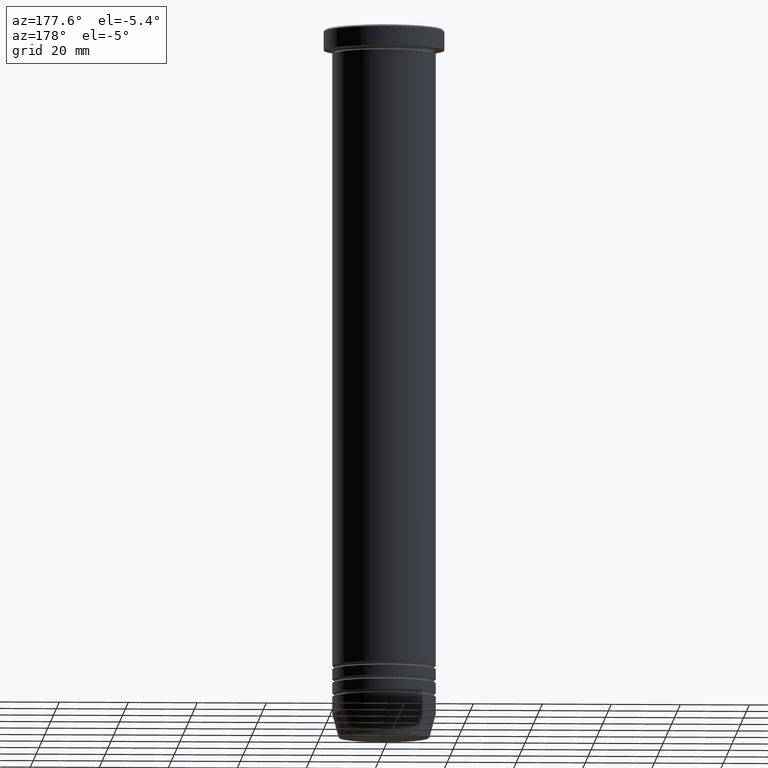
[diagram: clean part render]
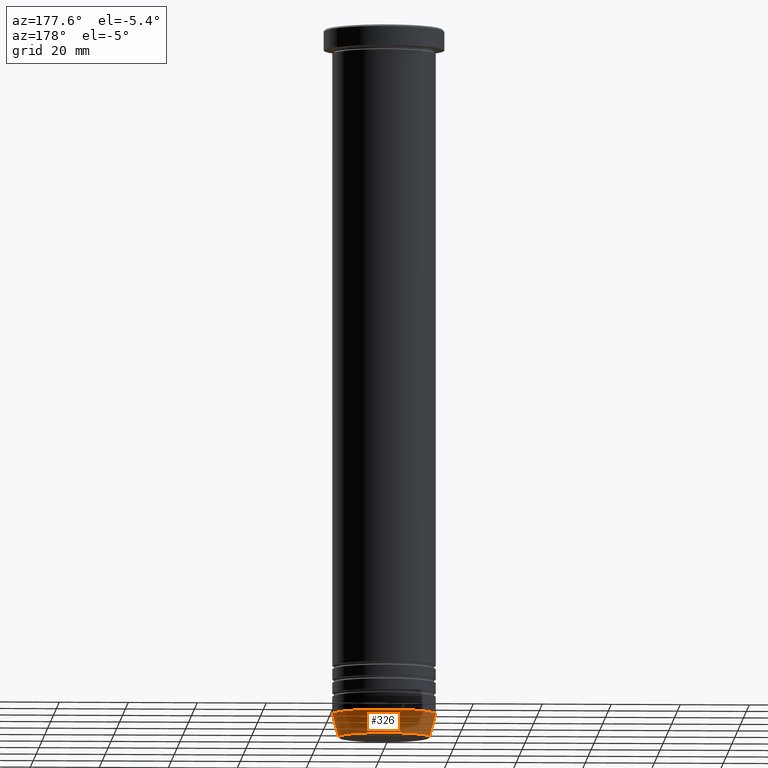
[diagram: same view with one face highlighted and labeled with its STEP entity id]
A machine part, auxiliary view. The second image highlights one B-rep face of the part: STEP entity #326.
In plain terms, the highlighted conical surface has half-angle 15 deg.
Its self-contained STEP definition (entity closure, byte-faithful):
#23 = DIRECTION ( 'NONE',  ( -0.2588190451025202399, 3.169619151431758162E-17, 0.9659258262890684232 ) ) ;
#31 = EDGE_CURVE ( 'NONE', #433, #1126, #473, .T. ) ;
#50 = CARTESIAN_POINT ( 'NONE',  ( 0.000000000000000000, 0.000000000000000000, -205.6294095225512706 ) ) ;
#95 = DIRECTION ( 'NONE',  ( 1.000000000000000000, 0.000000000000000000, 0.000000000000000000 ) ) ;
#118 = LINE ( 'NONE', #776, #593 ) ;
#138 = LINE ( 'NONE', #897, #764 ) ;
#148 = AXIS2_PLACEMENT_3D ( 'NONE', #50, #970, #798 ) ;
#154 = CARTESIAN_POINT ( 'NONE',  ( 13.22365507213718772, 0.000000000000000000, -205.6294095225512706 ) ) ;
#190 = CARTESIAN_POINT ( 'NONE',  ( 14.99999999999999822, 0.000000000000000000, -199.0000000000000000 ) ) ;
#215 = CARTESIAN_POINT ( 'NONE',  ( 0.000000000000000000, 0.000000000000000000, -206.0000000000000284 ) ) ;
#220 = DIRECTION ( 'NONE',  ( -0.000000000000000000, -0.000000000000000000, 1.000000000000000000 ) ) ;
#250 = ORIENTED_EDGE ( 'NONE', *, *, #535, .F. ) ;
#296 = AXIS2_PLACEMENT_3D ( 'NONE', #707, #543, #95 ) ;
#326 = ADVANCED_FACE ( 'NONE', ( #726 ), #606, .T. ) ;
#327 = EDGE_CURVE ( 'NONE', #1126, #405, #138, .T. ) ;
#378 = CARTESIAN_POINT ( 'NONE',  ( -14.99999999999999822, 1.836970198721029589E-15, -199.0000000000000000 ) ) ;
#405 = VERTEX_POINT ( 'NONE', #378 ) ;
#433 = VERTEX_POINT ( 'NONE', #154 ) ;
#473 = CIRCLE ( 'NONE', #148, 13.22365507213718772 ) ;
#476 = CARTESIAN_POINT ( 'NONE',  ( -13.22365507213718772, 1.728200442216587992E-15, -205.6294095225512706 ) ) ;
#509 = VERTEX_POINT ( 'NONE', #190 ) ;
#535 = EDGE_CURVE ( 'NONE', #433, #509, #118, .T. ) ;
#543 = DIRECTION ( 'NONE',  ( -0.000000000000000000, -0.000000000000000000, 1.000000000000000000 ) ) ;
#565 = EDGE_CURVE ( 'NONE', #509, #405, #750, .T. ) ;
#593 = VECTOR ( 'NONE', #1056, 999.9999999999998863 ) ;
#606 = CONICAL_SURFACE ( 'NONE', #910, 13.12435565298214080, 0.2617993877991488527 ) ;
#707 = CARTESIAN_POINT ( 'NONE',  ( 0.000000000000000000, 0.000000000000000000, -199.0000000000000000 ) ) ;
#726 = FACE_OUTER_BOUND ( 'NONE', #908, .T. ) ;
#750 = CIRCLE ( 'NONE', #296, 14.99999999999999822 ) ;
#764 = VECTOR ( 'NONE', #23, 999.9999999999998863 ) ;
#776 = CARTESIAN_POINT ( 'NONE',  ( 13.12435565298214080, 0.000000000000000000, -206.0000000000000284 ) ) ;
#798 = DIRECTION ( 'NONE',  ( -1.000000000000000000, 0.000000000000000000, 0.000000000000000000 ) ) ;
#889 = ORIENTED_EDGE ( 'NONE', *, *, #327, .T. ) ;
#897 = CARTESIAN_POINT ( 'NONE',  ( -13.12435565298214080, 1.607270014129604977E-15, -206.0000000000000284 ) ) ;
#908 = EDGE_LOOP ( 'NONE', ( #1035, #889, #926, #250 ) ) ;
#910 = AXIS2_PLACEMENT_3D ( 'NONE', #215, #220, #1074 ) ;
#926 = ORIENTED_EDGE ( 'NONE', *, *, #565, .F. ) ;
#970 = DIRECTION ( 'NONE',  ( -0.000000000000000000, -0.000000000000000000, 1.000000000000000000 ) ) ;
#1035 = ORIENTED_EDGE ( 'NONE', *, *, #31, .T. ) ;
#1056 = DIRECTION ( 'NONE',  ( 0.2588190451025202399, 0.000000000000000000, 0.9659258262890684232 ) ) ;
#1074 = DIRECTION ( 'NONE',  ( 1.000000000000000000, 0.000000000000000000, 0.000000000000000000 ) ) ;
#1126 = VERTEX_POINT ( 'NONE', #476 ) ;